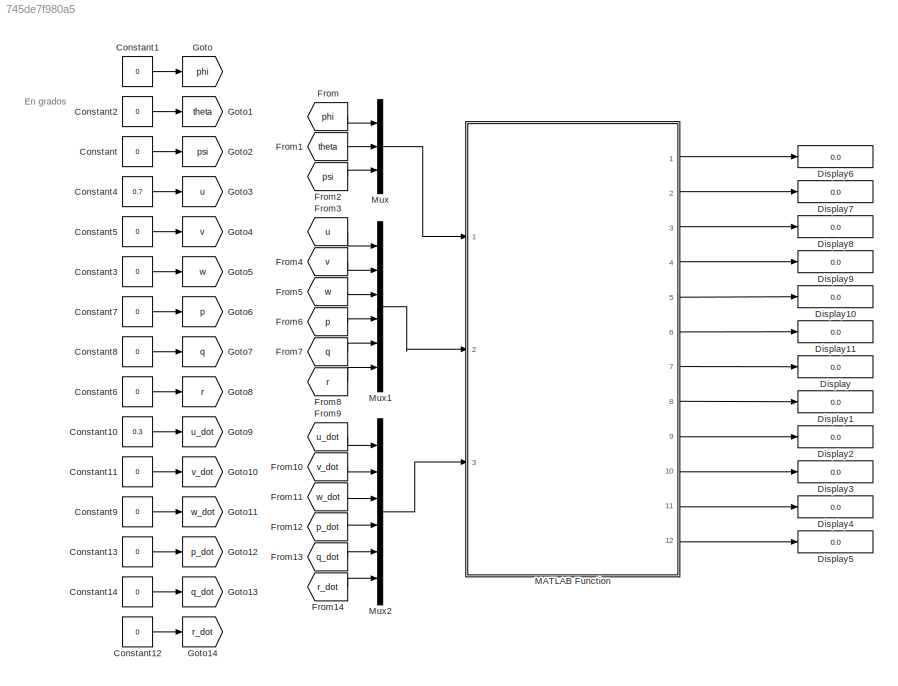
MODEL slx_745de7f980a5
KIND model
CONFIG AbsTol = auto
CONFIG EnableMultiTasking = off
CONFIG FixedStep = auto
CONFIG MaxStep = auto
CONFIG MinStep = auto
CONFIG RelTol = 1e-3
CONFIG SampleTimeConstraint = Unconstrained
CONFIG Solver = VariableStepAuto
CONFIG SolverName = VariableStepAuto
CONFIG StartTime = 0.0
CONFIG StopTime = 10.0
BLOCK [Constant] Constant
  Value = 0
BLOCK [Constant] Constant1
  Value = 0
BLOCK [Constant] Constant10
  Value = 0.3
BLOCK [Constant] Constant11
  Value = 0
BLOCK [Constant] Constant12
  Value = 0
BLOCK [Constant] Constant13
  Value = 0
BLOCK [Constant] Constant14
  Value = 0
BLOCK [Constant] Constant2
  Value = 0
BLOCK [Constant] Constant3
  Value = 0
BLOCK [Constant] Constant4
  Value = 0.7
BLOCK [Constant] Constant5
  Value = 0
BLOCK [Constant] Constant6
  Value = 0
BLOCK [Constant] Constant7
  Value = 0
BLOCK [Constant] Constant8
  Value = 0
BLOCK [Constant] Constant9
  Value = 0
BLOCK [Display] Display
  Decimation = 1
  Ports = [1]
BLOCK [Display] Display1
  Decimation = 1
  Ports = [1]
BLOCK [Display] Display10
  Decimation = 1
  Ports = [1]
BLOCK [Display] Display11
  Decimation = 1
  Ports = [1]
BLOCK [Display] Display2
  Decimation = 1
  Ports = [1]
BLOCK [Display] Display3
  Decimation = 1
  Ports = [1]
BLOCK [Display] Display4
  Decimation = 1
  Ports = [1]
BLOCK [Display] Display5
  Decimation = 1
  Ports = [1]
BLOCK [Display] Display6
  Decimation = 1
  Ports = [1]
BLOCK [Display] Display7
  Decimation = 1
  Ports = [1]
BLOCK [Display] Display8
  Decimation = 1
  Ports = [1]
BLOCK [Display] Display9
  Decimation = 1
  Ports = [1]
BLOCK [From] From
  GotoTag = phi
BLOCK [From] From1
  GotoTag = theta
BLOCK [From] From10
  GotoTag = v_dot
BLOCK [From] From11
  GotoTag = w_dot
BLOCK [From] From12
  GotoTag = p_dot
BLOCK [From] From13
  GotoTag = q_dot
BLOCK [From] From14
  GotoTag = r_dot
BLOCK [From] From2
  GotoTag = psi
BLOCK [From] From3
  GotoTag = u
BLOCK [From] From4
  GotoTag = v
BLOCK [From] From5
  GotoTag = w
BLOCK [From] From6
  GotoTag = p
BLOCK [From] From7
  GotoTag = q
BLOCK [From] From8
  GotoTag = r
BLOCK [From] From9
  GotoTag = u_dot
BLOCK [Goto] Goto
  GotoTag = phi
BLOCK [Goto] Goto1
  GotoTag = theta
BLOCK [Goto] Goto10
  GotoTag = v_dot
BLOCK [Goto] Goto11
  GotoTag = w_dot
BLOCK [Goto] Goto12
  GotoTag = p_dot
BLOCK [Goto] Goto13
  GotoTag = q_dot
BLOCK [Goto] Goto14
  GotoTag = r_dot
BLOCK [Goto] Goto2
  GotoTag = psi
BLOCK [Goto] Goto3
  GotoTag = u
BLOCK [Goto] Goto4
  GotoTag = v
BLOCK [Goto] Goto5
  GotoTag = w
BLOCK [Goto] Goto6
  GotoTag = p
BLOCK [Goto] Goto7
  GotoTag = q
BLOCK [Goto] Goto8
  GotoTag = r
BLOCK [Goto] Goto9
  GotoTag = u_dot
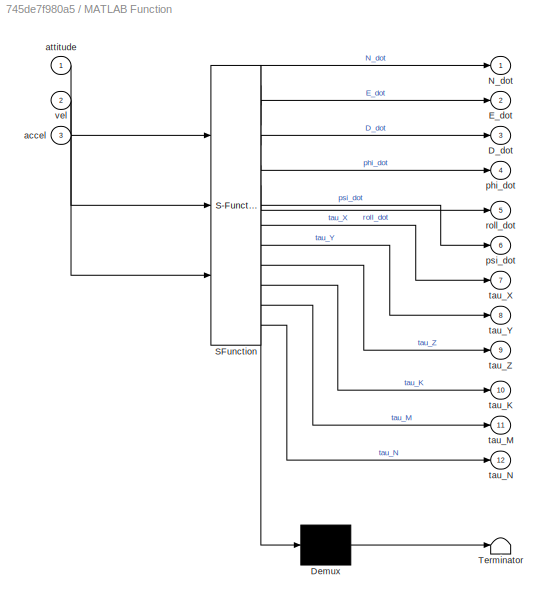
BLOCK [SubSystem] MATLAB Function
  ErrorFcn = Stateflow.Translate.translate
  PermitHierarchicalResolution = ExplicitOnly
  Ports = [3, 12]
  RequestExecContextInheritance = off
  SFBlockType = MATLAB Function
  TreatAsAtomicUnit = on
BLOCK [Demux] MATLAB Function/ Demux 
  Outputs = 1
  Ports = [1, 1]
BLOCK [S-Function] MATLAB Function/ SFunction 
  EnableBusSupport = on
  FunctionName = sf_sfun
  PortCounts = [3 13]
  Ports = [3, 13]
  SFcnIsStateOwnerBlock = off
  SFunctionDeploymentMode = off
  Tag = Stateflow S-Function 2
BLOCK [Terminator] MATLAB Function/ Terminator 
BLOCK [Outport] MATLAB Function/D_dot
  Port = 3
BLOCK [Outport] MATLAB Function/E_dot
  Port = 2
BLOCK [Outport] MATLAB Function/N_dot
BLOCK [Inport] MATLAB Function/accel
  Port = 3
BLOCK [Inport] MATLAB Function/attitude
BLOCK [Outport] MATLAB Function/phi_dot
  Port = 4
BLOCK [Outport] MATLAB Function/psi_dot
  Port = 6
BLOCK [Outport] MATLAB Function/roll_dot
  Port = 5
BLOCK [Outport] MATLAB Function/tau_K
  Port = 10
BLOCK [Outport] MATLAB Function/tau_M
  Port = 11
BLOCK [Outport] MATLAB Function/tau_N
  Port = 12
BLOCK [Outport] MATLAB Function/tau_X
  Port = 7
BLOCK [Outport] MATLAB Function/tau_Y
  Port = 8
BLOCK [Outport] MATLAB Function/tau_Z
  Port = 9
BLOCK [Inport] MATLAB Function/vel
  Port = 2
BLOCK [Mux] Mux
  DisplayOption = bar
  Inputs = 3
  Ports = [3, 1]
BLOCK [Mux] Mux1
  DisplayOption = bar
  Inputs = 6
  Ports = [6, 1]
BLOCK [Mux] Mux2
  DisplayOption = bar
  Inputs = 6
  Ports = [6, 1]
ANNOTATION (root): En grados
LINE Constant10:1 -> Goto9:1
LINE Constant11:1 -> Goto10:1
LINE Constant12:1 -> Goto14:1
LINE Constant13:1 -> Goto12:1
LINE Constant14:1 -> Goto13:1
LINE Constant1:1 -> Goto:1
LINE Constant2:1 -> Goto1:1
LINE Constant3:1 -> Goto5:1
LINE Constant4:1 -> Goto3:1
LINE Constant5:1 -> Goto4:1
LINE Constant6:1 -> Goto8:1
LINE Constant7:1 -> Goto6:1
LINE Constant8:1 -> Goto7:1
LINE Constant9:1 -> Goto11:1
LINE Constant:1 -> Goto2:1
LINE From10:1 -> Mux2:2
LINE From11:1 -> Mux2:3
LINE From12:1 -> Mux2:4
LINE From13:1 -> Mux2:5
LINE From14:1 -> Mux2:6
LINE From1:1 -> Mux:2
LINE From2:1 -> Mux:3
LINE From3:1 -> Mux1:1
LINE From4:1 -> Mux1:2
LINE From5:1 -> Mux1:3
LINE From6:1 -> Mux1:4
LINE From7:1 -> Mux1:5
LINE From8:1 -> Mux1:6
LINE From9:1 -> Mux2:1
LINE From:1 -> Mux:1
LINE MATLAB Function:1 -> Display6:1
LINE MATLAB Function:10 -> Display3:1
LINE MATLAB Function:11 -> Display4:1
LINE MATLAB Function:12 -> Display5:1
LINE MATLAB Function:2 -> Display7:1
LINE MATLAB Function:3 -> Display8:1
LINE MATLAB Function:4 -> Display9:1
LINE MATLAB Function:5 -> Display10:1
LINE MATLAB Function:6 -> Display11:1
LINE MATLAB Function:7 -> Display:1
LINE MATLAB Function:8 -> Display1:1
LINE MATLAB Function:9 -> Display2:1
LINE Mux1:1 -> MATLAB Function:2
LINE Mux2:1 -> MATLAB Function:3
LINE Mux:1 -> MATLAB Function:1
CHART MATLAB Function states=1 transitions=1
  STATE_LABEL 'eML_blk_kernel()'
  STATE_LABEL "SCRIPT:\nfunction [N_dot,E_dot,D_dot,phi_dot,roll_dot,psi_dot,tau_X,tau_Y,tau_Z,tau_K,tau_M,tau_N]  = UUV_model(attitude, vel, accel)\n% Skew symmetric matrix\nS = @(s) [0    -s(3) s(2);\n          s(3) 0     -s(1);\n          -s(2) s(1)  0    ];  \n      \n% Parameters\nm = 24;\nvol = 0.02306187;\nW = m*9.81;\nB = W*1.005; %1000*9.81*vol;\n\nr_g = [0 0 0].';    % Distance from origin to center of mass\nr_b = [...<+3034ch>"
CHART  states=0 transitions=0
